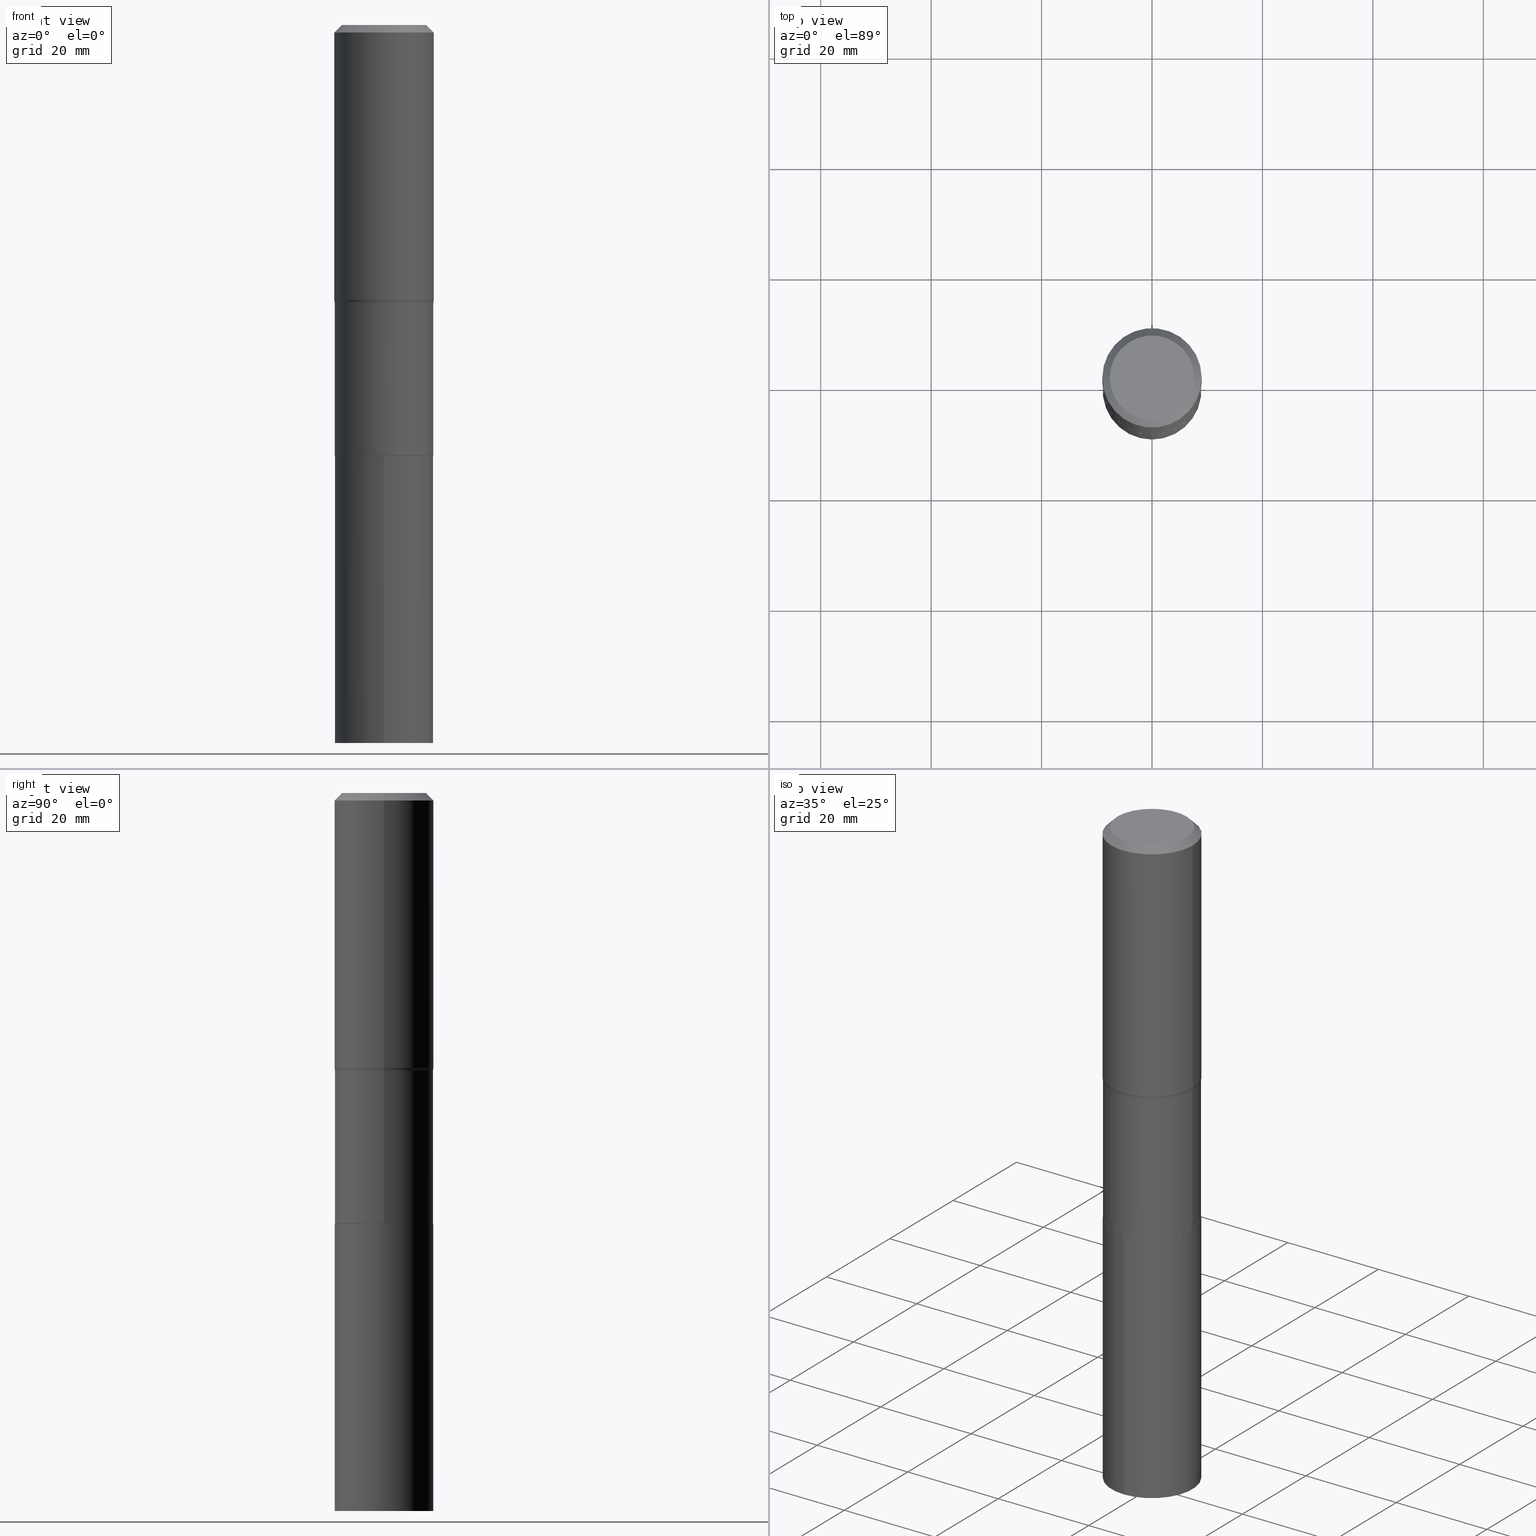
[diagram: canonical four-view strip — front | top / right | iso, engineering-drawing reading convention]
A machine part, canonical four-view strip (front | top / right | iso — engineering-drawing reading convention). The complete STEP part file that produces these views, byte-faithful:
ISO-10303-21;
HEADER;
FILE_DESCRIPTION (( 'STEP AP203' ),
    '1' );
FILE_NAME ('58858.STEP',
    '2024-04-19T14:46:21',
    ( '' ),
    ( '' ),
    'SwSTEP 2.0',
    'SolidWorks 2023',
    '' );
FILE_SCHEMA (( 'CONFIG_CONTROL_DESIGN' ));
ENDSEC;

DATA;
#1 = DIRECTION ( 'NONE',  ( -2.445157327198882185E-29, 3.491927394479744656E-15, 1.000000000000000000 ) ) ;
#2 = TOROIDAL_SURFACE ( 'NONE', #363, 0.4315499999999998226, 0.07999999999999996003 ) ;
#3 = EDGE_CURVE ( 'NONE', #352, #155, #342, .T. ) ;
#4 = DIRECTION ( 'NONE',  ( -6.982962677686265133E-15, -1.000000000000000000, 3.108346458443195584E-15 ) ) ;
#5 = CARTESIAN_POINT ( 'NONE',  ( -1.002970424325033577E-46, 1.431975951230896212E-32, 4.101342130344485961E-18 ) ) ;
#6 = SECURITY_CLASSIFICATION_LEVEL ( 'unclassified' ) ;
#7 = ORIENTED_EDGE ( 'NONE', *, *, #252, .T. ) ;
#8 = AXIS2_PLACEMENT_3D ( 'NONE', #60, #449, #52 ) ;
#9 = CIRCLE ( 'NONE', #297, 0.3543500000000002759 ) ;
#10 =( CONVERSION_BASED_UNIT ( 'INCH', #83 ) LENGTH_UNIT ( ) NAMED_UNIT ( #279 ) );
#11 = FACE_OUTER_BOUND ( 'NONE', #397, .T. ) ;
#12 = CYLINDRICAL_SURFACE ( 'NONE', #334, 0.3515499999999999736 ) ;
#13 =( NAMED_UNIT ( * ) SI_UNIT ( $, .STERADIAN. ) SOLID_ANGLE_UNIT ( ) );
#14 = AXIS2_PLACEMENT_3D ( 'NONE', #138, #29, #143 ) ;
#15 = CARTESIAN_POINT ( 'NONE',  ( 7.510279250675172753E-29, -1.072268833972118442E-14, -3.071099999999999941 ) ) ;
#16 = ORIENTED_EDGE ( 'NONE', *, *, #144, .F. ) ;
#17 = EDGE_CURVE ( 'NONE', #414, #430, #403, .T. ) ;
#18 = DIRECTION ( 'NONE',  ( -1.000000000000000000, 7.105427357601001859E-15, 0.000000000000000000 ) ) ;
#19 = ORIENTED_EDGE ( 'NONE', *, *, #377, .T. ) ;
#20 = CARTESIAN_POINT ( 'NONE',  ( -0.3543500000000002759, -4.327659991680637196E-15, -1.960620009532889618 ) ) ;
#21 =( NAMED_UNIT ( * ) PLANE_ANGLE_UNIT ( ) SI_UNIT ( $, .RADIAN. ) );
#22 = DIRECTION ( 'NONE',  ( -6.982962677686265133E-15, -1.000000000000000000, 3.108346458443195584E-15 ) ) ;
#23 = APPROVAL_ROLE ( '' ) ;
#24 = CARTESIAN_POINT ( 'NONE',  ( 0.000000000000000000, 0.000000000000000000, 0.000000000000000000 ) ) ;
#25 = CC_DESIGN_DATE_AND_TIME_ASSIGNMENT ( #150, #292, ( #341 ) ) ;
#26 = DIRECTION ( 'NONE',  ( 1.000000000000000000, -6.982962677686265922E-15, 4.876176775795935793E-29 ) ) ;
#27 = DATE_TIME_ROLE ( 'creation_date' ) ;
#28 = EDGE_LOOP ( 'NONE', ( #293, #369, #226, #110 ) ) ;
#29 = DIRECTION ( 'NONE',  ( -2.445468806185136597E-29, 3.491481338843145583E-15, 1.000000000000000000 ) ) ;
#30 = EDGE_CURVE ( 'NONE', #430, #414, #9, .T. ) ;
#31 = APPROVAL_STATUS ( 'not_yet_approved' ) ;
#32 = CIRCLE ( 'NONE', #178, 0.3011975000000000069 ) ;
#33 = EDGE_LOOP ( 'NONE', ( #79, #139, #217, #427 ) ) ;
#34 = DIRECTION ( 'NONE',  ( 2.438088387897960049E-29, -3.491481338843145188E-15, -1.000000000000000000 ) ) ;
#35 = VERTEX_POINT ( 'NONE', #412 ) ;
#36 = DIRECTION ( 'NONE',  ( 1.000000000000000000, -6.982962677686266711E-15, 0.000000000000000000 ) ) ;
#37 = CALENDAR_DATE ( 2024, 19, 4 ) ;
#38 = DIRECTION ( 'NONE',  ( 1.000000000000000000, -6.982962677686268288E-15, 0.000000000000000000 ) ) ;
#39 = CARTESIAN_POINT ( 'NONE',  ( 4.845940986336468413E-29, -6.918719421051579045E-15, -1.981600000000000472 ) ) ;
#40 = ADVANCED_FACE ( 'NONE', ( #400 ), #260, .F. ) ;
#41 = DIRECTION ( 'NONE',  ( 1.000000000000000000, -6.982962677686265922E-15, 4.876176775795935793E-29 ) ) ;
#42 = EDGE_CURVE ( 'NONE', #223, #323, #132, .T. ) ;
#43 = PLANE ( 'NONE',  #386 ) ;
#44 = DIRECTION ( 'NONE',  ( -2.445468806185136597E-29, 3.491481338843145583E-15, 1.000000000000000000 ) ) ;
#45 = DIRECTION ( 'NONE',  ( 0.7071067811864026886, -2.468850131080739687E-15, 0.7071067811866923458 ) ) ;
#46 = ORIENTED_EDGE ( 'NONE', *, *, #219, .F. ) ;
#47 = DIRECTION ( 'NONE',  ( -2.445468806185136597E-29, 3.491481338843145583E-15, 1.000000000000000000 ) ) ;
#48 = CALENDAR_DATE ( 2024, 19, 4 ) ;
#49 = ORIENTED_EDGE ( 'NONE', *, *, #3, .F. ) ;
#50 = VECTOR ( 'NONE', #233, 39.37007874015748143 ) ;
#51 = CIRCLE ( 'NONE', #157, 0.3510500000000000287 ) ;
#52 = DIRECTION ( 'NONE',  ( -1.000000000000000000, 6.982962677686266711E-15, 0.000000000000000000 ) ) ;
#53 = ADVANCED_FACE ( 'NONE', ( #75 ), #408, .T. ) ;
#54 = DIRECTION ( 'NONE',  ( -2.445468806185136877E-29, 3.491481338843145188E-15, 1.000000000000000000 ) ) ;
#55 = CARTESIAN_POINT ( 'NONE',  ( 7.510279250675172753E-29, -1.072268833972118442E-14, -3.071099999999999941 ) ) ;
#56 = VECTOR ( 'NONE', #97, 39.37007874015748143 ) ;
#57 = AXIS2_PLACEMENT_3D ( 'NONE', #441, #405, #437 ) ;
#58 = CARTESIAN_POINT ( 'NONE',  ( -0.3515499999999999181, 2.497912987564631622E-15, -1.729251630979111735E-29 ) ) ;
#59 = DIRECTION ( 'NONE',  ( 1.000000000000000000, -6.982962677686266711E-15, 0.000000000000000000 ) ) ;
#60 = CARTESIAN_POINT ( 'NONE',  ( 1.299827807207564898E-30, -1.855809618628617475E-16, -0.05315250000000042163 ) ) ;
#61 = VERTEX_POINT ( 'NONE', #435 ) ;
#62 = LINE ( 'NONE', #93, #425 ) ;
#63 = COORDINATED_UNIVERSAL_TIME_OFFSET ( 5, 0, .BEHIND. ) ;
#64 = LINE ( 'NONE', #442, #201 ) ;
#65 = AXIS2_PLACEMENT_3D ( 'NONE', #299, #447, #237 ) ;
#66 = DIRECTION ( 'NONE',  ( -2.445468806185136597E-29, 3.491481338843145583E-15, 1.000000000000000000 ) ) ;
#67 = EDGE_CURVE ( 'NONE', #61, #96, #287, .T. ) ;
#68 = DIRECTION ( 'NONE',  ( 1.000000000000000000, -6.982962677686265922E-15, 0.000000000000000000 ) ) ;
#69 = ADVANCED_FACE ( 'NONE', ( #365 ), #2, .F. ) ;
#70 = VECTOR ( 'NONE', #203, 39.37007874015748143 ) ;
#71 = ORIENTED_EDGE ( 'NONE', *, *, #420, .F. ) ;
#72 = CC_DESIGN_SECURITY_CLASSIFICATION ( #341, ( #321 ) ) ;
#73 = CARTESIAN_POINT ( 'NONE',  ( 7.509056516272079952E-29, -1.072094259905176212E-14, -3.070599999999999774 ) ) ;
#74 = ORIENTED_EDGE ( 'NONE', *, *, #136, .T. ) ;
#75 = FACE_OUTER_BOUND ( 'NONE', #464, .T. ) ;
#76 = DIRECTION ( 'NONE',  ( -2.445157327198882185E-29, 3.491927394479744656E-15, 1.000000000000000000 ) ) ;
#77 = CLOSED_SHELL ( 'NONE', ( #247, #214, #152, #69, #251, #53, #439, #336, #119, #286, #205, #428 ) ) ;
#78 = EDGE_CURVE ( 'NONE', #352, #298, #154, .T. ) ;
#79 = ORIENTED_EDGE ( 'NONE', *, *, #179, .F. ) ;
#80 = EDGE_CURVE ( 'NONE', #96, #61, #95, .T. ) ;
#81 = EDGE_LOOP ( 'NONE', ( #234, #177, #175, #253 ) ) ;
#82 = AXIS2_PLACEMENT_3D ( 'NONE', #73, #47, #291 ) ;
#83 = LENGTH_MEASURE_WITH_UNIT ( LENGTH_MEASURE( 0.02539999999999999897 ), #204 );
#84 = ADVANCED_FACE ( 'NONE', ( #195 ), #12, .T. ) ;
#85 = CYLINDRICAL_SURFACE ( 'NONE', #210, 0.3515499999999999736 ) ;
#86 = DIRECTION ( 'NONE',  ( -2.445157327198882185E-29, 3.491927394479744656E-15, 1.000000000000000000 ) ) ;
#87 = DIRECTION ( 'NONE',  ( -0.7071067811865452413, 2.468850131082233000E-15, -0.7071067811865497932 ) ) ;
#88 = EDGE_CURVE ( 'NONE', #35, #103, #456, .T. ) ;
#89 = VECTOR ( 'NONE', #137, 39.37007874015748143 ) ;
#90 = PLANE ( 'NONE',  #415 ) ;
#91 = CC_DESIGN_PERSON_AND_ORGANIZATION_ASSIGNMENT ( #222, #109, ( #321 ) ) ;
#92 = CARTESIAN_POINT ( 'NONE',  ( 7.510279250675172753E-29, -1.072268833972118442E-14, -3.071099999999999941 ) ) ;
#93 = CARTESIAN_POINT ( 'NONE',  ( 0.3543500000000000538, -2.616598427373204657E-15, -0.05315250000000042163 ) ) ;
#94 = CYLINDRICAL_SURFACE ( 'NONE', #340, 0.3515499999999999181 ) ;
#95 = CIRCLE ( 'NONE', #65, 0.3515499999999998071 ) ;
#96 = VERTEX_POINT ( 'NONE', #413 ) ;
#97 = DIRECTION ( 'NONE',  ( -2.445468806185136877E-29, 3.491481338843145188E-15, 1.000000000000000000 ) ) ;
#98 = CARTESIAN_POINT ( 'NONE',  ( 7.510279250675172753E-29, -1.072268833972118442E-14, -3.071099999999999941 ) ) ;
#99 = ORIENTED_EDGE ( 'NONE', *, *, #368, .F. ) ;
#100 = LINE ( 'NONE', #458, #89 ) ;
#101 = DIRECTION ( 'NONE',  ( 1.000000000000000000, -6.982962677686266711E-15, 0.000000000000000000 ) ) ;
#102 = VERTEX_POINT ( 'NONE', #261 ) ;
#103 = VERTEX_POINT ( 'NONE', #121 ) ;
#104 = DIRECTION ( 'NONE',  ( 1.000000000000000000, -6.982962677686265922E-15, 4.876176775795935793E-29 ) ) ;
#105 = AXIS2_PLACEMENT_3D ( 'NONE', #382, #280, #135 ) ;
#106 = AXIS2_PLACEMENT_3D ( 'NONE', #193, #326, #186 ) ;
#107 = DIRECTION ( 'NONE',  ( -2.445468806185136597E-29, 3.491481338843145583E-15, 1.000000000000000000 ) ) ;
#108 = COORDINATED_UNIVERSAL_TIME_OFFSET ( 5, 0, .BEHIND. ) ;
#109 = PERSON_AND_ORGANIZATION_ROLE ( 'creator' ) ;
#110 = ORIENTED_EDGE ( 'NONE', *, *, #263, .F. ) ;
#111 = APPROVAL_ROLE ( '' ) ;
#112 = EDGE_LOOP ( 'NONE', ( #173, #140, #285, #146 ) ) ;
#113 = VECTOR ( 'NONE', #54, 39.37007874015748143 ) ;
#114 = PRODUCT_DEFINITION_SHAPE ( 'NONE', 'NONE',  #147 ) ;
#115 = LOCAL_TIME ( 10, 46, 21.00000000000000000, #176 ) ;
#116 = FACE_OUTER_BOUND ( 'NONE', #33, .T. ) ;
#117 = CARTESIAN_POINT ( 'NONE',  ( 7.510279250675172753E-29, -1.072268833972118442E-14, -3.071099999999999941 ) ) ;
#118 = APPROVAL ( #31, 'UNSPECIFIED' ) ;
#119 = ADVANCED_FACE ( 'NONE', ( #337 ), #328, .T. ) ;
#120 = ADVANCED_FACE ( 'NONE', ( #11 ), #85, .T. ) ;
#121 = CARTESIAN_POINT ( 'NONE',  ( 2.497912987564757839E-15, 0.3515499999999892600, -3.071100000000000829 ) ) ;
#122 = AXIS2_PLACEMENT_3D ( 'NONE', #269, #238, #68 ) ;
#123 = DIRECTION ( 'NONE',  ( -2.445157327198882185E-29, 3.491927394479744656E-15, 1.000000000000000000 ) ) ;
#124 = PERSON_AND_ORGANIZATION ( #145, #302 ) ;
#125 = DIRECTION ( 'NONE',  ( -6.982962677686265133E-15, -1.000000000000000000, 3.108346458443195584E-15 ) ) ;
#126 = ORIENTED_EDGE ( 'NONE', *, *, #467, .F. ) ;
#127 = CARTESIAN_POINT ( 'NONE',  ( 0.3510500000000000287, -1.317405738772294887E-14, -3.071099999999999941 ) ) ;
#128 = ADVANCED_FACE ( 'NONE', ( #232 ), #90, .F. ) ;
#129 = FACE_OUTER_BOUND ( 'NONE', #434, .T. ) ;
#130 = AXIS2_PLACEMENT_3D ( 'NONE', #344, #229, #18 ) ;
#131 = CC_DESIGN_APPROVAL ( #459, ( #341 ) ) ;
#132 = CIRCLE ( 'NONE', #158, 0.3515499999999999736 ) ;
#133 = CARTESIAN_POINT ( 'NONE',  ( 2.497912987564706563E-15, 0.3515499999999892600, -3.071100000000000829 ) ) ;
#134 = FACE_OUTER_BOUND ( 'NONE', #112, .T. ) ;
#135 = DIRECTION ( 'NONE',  ( 1.000000000000000000, -6.982962677686262766E-15, 0.000000000000000000 ) ) ;
#136 = EDGE_CURVE ( 'NONE', #429, #96, #309, .T. ) ;
#137 = DIRECTION ( 'NONE',  ( -0.7071067811864026886, 7.493145998869830357E-15, 0.7071067811866923458 ) ) ;
#138 = CARTESIAN_POINT ( 'NONE',  ( 1.299827807207564898E-30, -1.855809618628617475E-16, -0.05315250000000042163 ) ) ;
#139 = ORIENTED_EDGE ( 'NONE', *, *, #420, .T. ) ;
#140 = ORIENTED_EDGE ( 'NONE', *, *, #198, .T. ) ;
#141 = AXIS2_PLACEMENT_3D ( 'NONE', #278, #315, #353 ) ;
#142 = ORIENTED_EDGE ( 'NONE', *, *, #467, .T. ) ;
#143 = DIRECTION ( 'NONE',  ( 1.000000000000000000, -6.982962677686266711E-15, 0.000000000000000000 ) ) ;
#144 = EDGE_CURVE ( 'NONE', #102, #61, #411, .T. ) ;
#145 = PERSON ( 'UNSPECIFIED', 'UNSPECIFIED', 'UNSPECIFIED', ('UNSPECIFIED'), ('UNSPECIFIED'), ('UNSPECIFIED') ) ;
#146 = ORIENTED_EDGE ( 'NONE', *, *, #377, .F. ) ;
#147 = PRODUCT_DEFINITION ( 'UNKNOWN', '', #321, #240 ) ;
#148 = CARTESIAN_POINT ( 'NONE',  ( 2.497912987564731807E-15, 0.3515499999999820990, -5.118100000000002758 ) ) ;
#149 = CC_DESIGN_APPROVAL ( #259, ( #321 ) ) ;
#150 = DATE_AND_TIME ( #48, #371 ) ;
#151 = DIRECTION ( 'NONE',  ( -2.445468806185136597E-29, 3.491481338843145583E-15, 1.000000000000000000 ) ) ;
#152 = ADVANCED_FACE ( 'NONE', ( #375 ), #206, .T. ) ;
#153 = ORIENTED_EDGE ( 'NONE', *, *, #208, .T. ) ;
#154 = LINE ( 'NONE', #267, #187 ) ;
#155 = VERTEX_POINT ( 'NONE', #339 ) ;
#156 = ORIENTED_EDGE ( 'NONE', *, *, #172, .T. ) ;
#157 = AXIS2_PLACEMENT_3D ( 'NONE', #468, #236, #59 ) ;
#158 = AXIS2_PLACEMENT_3D ( 'NONE', #398, #76, #4 ) ;
#159 = EDGE_CURVE ( 'NONE', #103, #35, #256, .T. ) ;
#160 = CARTESIAN_POINT ( 'NONE',  ( 0.000000000000000000, 0.000000000000000000, 0.000000000000000000 ) ) ;
#161 = CIRCLE ( 'NONE', #130, 0.07999999999999996003 ) ;
#162 = CIRCLE ( 'NONE', #122, 0.3515499999999999736 ) ;
#163 = DIRECTION ( 'NONE',  ( -6.982962677686265133E-15, -1.000000000000000000, 3.108346458443195584E-15 ) ) ;
#164 = ORIENTED_EDGE ( 'NONE', *, *, #368, .T. ) ;
#165 = APPLICATION_PROTOCOL_DEFINITION ( 'international standard', 'config_control_design', 1994, #197 ) ;
#166 = CARTESIAN_POINT ( 'NONE',  ( -1.002970424325033577E-46, 1.431975951230896212E-32, 4.101342130344485961E-18 ) ) ;
#167 = CARTESIAN_POINT ( 'NONE',  ( 7.510279250675172753E-29, -1.072268833972118442E-14, -3.071099999999999941 ) ) ;
#168 = CALENDAR_DATE ( 2024, 19, 4 ) ;
#169 = AXIS2_PLACEMENT_3D ( 'NONE', #347, #34, #241 ) ;
#170 = EDGE_CURVE ( 'NONE', #223, #103, #450, .T. ) ;
#171 = DATE_AND_TIME ( #209, #445 ) ;
#172 = EDGE_CURVE ( 'NONE', #414, #61, #161, .T. ) ;
#173 = ORIENTED_EDGE ( 'NONE', *, *, #384, .F. ) ;
#174 = DIRECTION ( 'NONE',  ( -2.445468806185136597E-29, 3.491481338843145583E-15, 1.000000000000000000 ) ) ;
#175 = ORIENTED_EDGE ( 'NONE', *, *, #225, .F. ) ;
#176 = COORDINATED_UNIVERSAL_TIME_OFFSET ( 5, 0, .BEHIND. ) ;
#177 = ORIENTED_EDGE ( 'NONE', *, *, #258, .T. ) ;
#178 = AXIS2_PLACEMENT_3D ( 'NONE', #166, #273, #451 ) ;
#179 = EDGE_CURVE ( 'NONE', #155, #352, #32, .T. ) ;
#180 = AXIS2_PLACEMENT_3D ( 'NONE', #5, #151, #357 ) ;
#181 = ORIENTED_EDGE ( 'NONE', *, *, #219, .T. ) ;
#182 = DIRECTION ( 'NONE',  ( 6.982962677686265922E-15, 1.000000000000000000, -3.491927394479744656E-15 ) ) ;
#183 = ORIENTED_EDGE ( 'NONE', *, *, #384, .T. ) ;
#184 = CARTESIAN_POINT ( 'NONE',  ( -2.454860529340531335E-15, -0.3515500000000106873, -3.071099999999998609 ) ) ;
#185 = PERSON_AND_ORGANIZATION ( #145, #302 ) ;
#186 = DIRECTION ( 'NONE',  ( -1.000000000000000000, 6.982962677686266711E-15, 0.000000000000000000 ) ) ;
#187 = VECTOR ( 'NONE', #87, 39.37007874015748143 ) ;
#188 = PERSON_AND_ORGANIZATION_ROLE ( 'classification_officer' ) ;
#189 = ORIENTED_EDGE ( 'NONE', *, *, #144, .T. ) ;
#190 = ORIENTED_EDGE ( 'NONE', *, *, #78, .T. ) ;
#191 = CARTESIAN_POINT ( 'NONE',  ( 4.845940986336468413E-29, -6.918719421051579045E-15, -1.981600000000000472 ) ) ;
#192 = VERTEX_POINT ( 'NONE', #127 ) ;
#193 = CARTESIAN_POINT ( 'NONE',  ( 1.299827807207564898E-30, -1.855809618628617475E-16, -0.05315250000000042163 ) ) ;
#194 = AXIS2_PLACEMENT_3D ( 'NONE', #15, #346, #163 ) ;
#195 = FACE_OUTER_BOUND ( 'NONE', #362, .T. ) ;
#196 = CC_DESIGN_PERSON_AND_ORGANIZATION_ASSIGNMENT ( #360, #188, ( #341 ) ) ;
#197 = APPLICATION_CONTEXT ( 'configuration controlled 3d designs of mechanical parts and assemblies' ) ;
#198 = EDGE_CURVE ( 'NONE', #381, #192, #221, .T. ) ;
#199 = DIRECTION ( 'NONE',  ( -2.445468806185136597E-29, 3.491481338843145583E-15, 1.000000000000000000 ) ) ;
#200 = ORIENTED_EDGE ( 'NONE', *, *, #17, .F. ) ;
#201 = VECTOR ( 'NONE', #45, 39.37007874015748143 ) ;
#202 =( GEOMETRIC_REPRESENTATION_CONTEXT ( 3 ) GLOBAL_UNCERTAINTY_ASSIGNED_CONTEXT ( ( #268 ) ) GLOBAL_UNIT_ASSIGNED_CONTEXT ( ( #10, #21, #13 ) ) REPRESENTATION_CONTEXT ( 'NONE', 'WORKASPACE' ) );
#203 = DIRECTION ( 'NONE',  ( -2.445157327198882185E-29, 3.491927394479744656E-15, 1.000000000000000000 ) ) ;
#204 =( LENGTH_UNIT ( ) NAMED_UNIT ( * ) SI_UNIT ( $, .METRE. ) );
#205 = ADVANCED_FACE ( 'NONE', ( #333 ), #43, .F. ) ;
#206 = CYLINDRICAL_SURFACE ( 'NONE', #313, 0.3543500000000001648 ) ;
#207 = CYLINDRICAL_SURFACE ( 'NONE', #463, 0.3543500000000001648 ) ;
#208 = EDGE_CURVE ( 'NONE', #429, #102, #431, .T. ) ;
#209 = CALENDAR_DATE ( 2024, 19, 4 ) ;
#210 = AXIS2_PLACEMENT_3D ( 'NONE', #55, #123, #304 ) ;
#211 = CARTESIAN_POINT ( 'NONE',  ( 0.000000000000000000, 0.000000000000000000, 0.000000000000000000 ) ) ;
#212 = DIRECTION ( 'NONE',  ( 1.000000000000000000, -6.982962677686265922E-15, 4.876176775795935793E-29 ) ) ;
#213 = DIRECTION ( 'NONE',  ( -2.445468806185136597E-29, 3.491481338843145583E-15, 1.000000000000000000 ) ) ;
#214 = ADVANCED_FACE ( 'NONE', ( #116 ), #444, .T. ) ;
#215 = ORIENTED_EDGE ( 'NONE', *, *, #198, .F. ) ;
#216 = PERSON_AND_ORGANIZATION ( #145, #302 ) ;
#217 = ORIENTED_EDGE ( 'NONE', *, *, #225, .T. ) ;
#218 = DIRECTION ( 'NONE',  ( -2.445468806185136597E-29, 3.491481338843145583E-15, 1.000000000000000000 ) ) ;
#219 = EDGE_CURVE ( 'NONE', #323, #35, #359, .T. ) ;
#220 = EDGE_LOOP ( 'NONE', ( #71, #49, #190, #417 ) ) ;
#221 = CIRCLE ( 'NONE', #230, 0.3510500000000000287 ) ;
#222 = PERSON_AND_ORGANIZATION ( #145, #302 ) ;
#223 = VERTEX_POINT ( 'NONE', #148 ) ;
#224 = ORIENTED_EDGE ( 'NONE', *, *, #179, .T. ) ;
#225 = EDGE_CURVE ( 'NONE', #311, #298, #262, .T. ) ;
#226 = ORIENTED_EDGE ( 'NONE', *, *, #364, .T. ) ;
#227 = MANIFOLD_SOLID_BREP ( 'Body-Move/Copy2[2]', #77 ) ;
#228 = ORIENTED_EDGE ( 'NONE', *, *, #3, .T. ) ;
#229 = DIRECTION ( 'NONE',  ( 7.105427357601001859E-15, 1.000000000000000000, -3.491481338843145583E-15 ) ) ;
#230 = AXIS2_PLACEMENT_3D ( 'NONE', #98, #322, #36 ) ;
#231 = MANIFOLD_SOLID_BREP ( 'Body-Move/Copy2[1]', #433 ) ;
#232 = FACE_OUTER_BOUND ( 'NONE', #446, .T. ) ;
#233 = DIRECTION ( 'NONE',  ( -2.445468806185136877E-29, 3.491481338843145188E-15, 1.000000000000000000 ) ) ;
#234 = ORIENTED_EDGE ( 'NONE', *, *, #30, .T. ) ;
#235 = CIRCLE ( 'NONE', #320, 0.3515499999999999736 ) ;
#236 = DIRECTION ( 'NONE',  ( -2.445468806185136597E-29, 3.491481338843145583E-15, 1.000000000000000000 ) ) ;
#237 = DIRECTION ( 'NONE',  ( 1.000000000000000000, -6.982962677686265133E-15, 0.000000000000000000 ) ) ;
#238 = DIRECTION ( 'NONE',  ( -2.445468806185136597E-29, 3.491481338843145583E-15, 1.000000000000000000 ) ) ;
#239 = FACE_OUTER_BOUND ( 'NONE', #28, .T. ) ;
#240 = DESIGN_CONTEXT ( 'detailed design', #197, 'design' ) ;
#241 = DIRECTION ( 'NONE',  ( -1.000000000000000000, 6.982962677686265922E-15, -4.876176775795935793E-29 ) ) ;
#242 = ORIENTED_EDGE ( 'NONE', *, *, #67, .T. ) ;
#243 = CIRCLE ( 'NONE', #370, 0.3543500000000000538 ) ;
#244 = DIRECTION ( 'NONE',  ( -2.445468806185136597E-29, 3.491481338843145583E-15, 1.000000000000000000 ) ) ;
#245 = DIRECTION ( 'NONE',  ( 1.000000000000000000, -6.982962677686267499E-15, 4.883557194083113462E-29 ) ) ;
#246 = ORIENTED_EDGE ( 'NONE', *, *, #30, .F. ) ;
#247 = ADVANCED_FACE ( 'NONE', ( #308 ), #348, .T. ) ;
#248 = ORIENTED_EDGE ( 'NONE', *, *, #252, .F. ) ;
#249 = AXIS2_PLACEMENT_3D ( 'NONE', #167, #86, #125 ) ;
#250 = ORIENTED_EDGE ( 'NONE', *, *, #136, .F. ) ;
#251 = ADVANCED_FACE ( 'NONE', ( #129 ), #94, .T. ) ;
#252 = EDGE_CURVE ( 'NONE', #430, #96, #296, .T. ) ;
#253 = ORIENTED_EDGE ( 'NONE', *, *, #364, .F. ) ;
#254 = COORDINATED_UNIVERSAL_TIME_OFFSET ( 5, 0, .BEHIND. ) ;
#255 = DIRECTION ( 'NONE',  ( -2.445468806185136597E-29, 3.491481338843145583E-15, 1.000000000000000000 ) ) ;
#256 = CIRCLE ( 'NONE', #194, 0.3515499999999999736 ) ;
#257 = DIRECTION ( 'NONE',  ( -2.445468806185136597E-29, 3.491481338843145583E-15, 1.000000000000000000 ) ) ;
#258 = EDGE_CURVE ( 'NONE', #414, #298, #283, .T. ) ;
#259 = APPROVAL ( #385, 'UNSPECIFIED' ) ;
#260 = PLANE ( 'NONE',  #356 ) ;
#261 = CARTESIAN_POINT ( 'NONE',  ( -0.3515499999999999736, -6.321918022487037385E-15, -3.070599999999999774 ) ) ;
#262 = CIRCLE ( 'NONE', #14, 0.3543500000000000538 ) ;
#263 = EDGE_CURVE ( 'NONE', #298, #311, #243, .T. ) ;
#264 = LINE ( 'NONE', #319, #56 ) ;
#265 = DIRECTION ( 'NONE',  ( -2.445157327198881905E-29, 3.491927394479744656E-15, 1.000000000000000000 ) ) ;
#266 = PERSON_AND_ORGANIZATION_ROLE ( 'design_owner' ) ;
#267 = CARTESIAN_POINT ( 'NONE',  ( -0.3543500000000000538, 2.288831862975267218E-15, -0.05315250000000042163 ) ) ;
#268 = UNCERTAINTY_MEASURE_WITH_UNIT (LENGTH_MEASURE( 1.000000000000000082E-05 ), #10, 'distance_accuracy_value', 'NONE');
#269 = CARTESIAN_POINT ( 'NONE',  ( 7.509056516272079952E-29, -1.072094259905176212E-14, -3.070599999999999774 ) ) ;
#270 = AXIS2_PLACEMENT_3D ( 'NONE', #327, #218, #41 ) ;
#271 = APPROVAL_PERSON_ORGANIZATION ( #185, #459, #111 ) ;
#272 = CARTESIAN_POINT ( 'NONE',  ( 0.3543500000000000538, -2.659993786700990959E-15, -0.05315250000000042163 ) ) ;
#273 = DIRECTION ( 'NONE',  ( -2.445468806185136597E-29, 3.491481338843145583E-15, 1.000000000000000000 ) ) ;
#274 = DIRECTION ( 'NONE',  ( -2.445468806185136877E-29, 3.491481338843145188E-15, 1.000000000000000000 ) ) ;
#275 = CC_DESIGN_PERSON_AND_ORGANIZATION_ASSIGNMENT ( #216, #324, ( #321 ) ) ;
#276 = PERSON_AND_ORGANIZATION ( #145, #302 ) ;
#277 = DIRECTION ( 'NONE',  ( 1.000000000000000000, -6.982962677686266711E-15, 0.000000000000000000 ) ) ;
#278 = CARTESIAN_POINT ( 'NONE',  ( 7.510279250675172753E-29, -1.072268833972118442E-14, -3.071099999999999941 ) ) ;
#279 = DIMENSIONAL_EXPONENTS ( 1.000000000000000000, 0.000000000000000000, 0.000000000000000000, 0.000000000000000000, 0.000000000000000000, 0.000000000000000000, 0.000000000000000000 ) ;
#280 = DIRECTION ( 'NONE',  ( -6.982962677686266711E-15, -1.000000000000000000, 3.491481338843145583E-15 ) ) ;
#281 = AXIS2_PLACEMENT_3D ( 'NONE', #39, #107, #245 ) ;
#282 = ORIENTED_EDGE ( 'NONE', *, *, #80, .F. ) ;
#283 = LINE ( 'NONE', #390, #402 ) ;
#284 = SHAPE_DEFINITION_REPRESENTATION ( #114, #310 ) ;
#285 = ORIENTED_EDGE ( 'NONE', *, *, #343, .T. ) ;
#286 = ADVANCED_FACE ( 'NONE', ( #392 ), #454, .F. ) ;
#287 = CIRCLE ( 'NONE', #301, 0.3515499999999998071 ) ;
#288 = LOCAL_TIME ( 10, 46, 21.00000000000000000, #108 ) ;
#289 = APPROVAL_DATE_TIME ( #404, #459 ) ;
#290 = PRODUCT_RELATED_PRODUCT_CATEGORY ( 'detail', '', ( #331 ) ) ;
#291 = DIRECTION ( 'NONE',  ( 1.000000000000000000, -6.982962677686265922E-15, 0.000000000000000000 ) ) ;
#292 = DATE_TIME_ROLE ( 'classification_date' ) ;
#293 = ORIENTED_EDGE ( 'NONE', *, *, #258, .F. ) ;
#294 = CARTESIAN_POINT ( 'NONE',  ( 4.845940986336468413E-29, -6.918719421051579045E-15, -1.981600000000000472 ) ) ;
#295 = ORIENTED_EDGE ( 'NONE', *, *, #67, .F. ) ;
#296 = CIRCLE ( 'NONE', #105, 0.07999999999999996003 ) ;
#297 = AXIS2_PLACEMENT_3D ( 'NONE', #366, #255, #38 ) ;
#298 = VERTEX_POINT ( 'NONE', #388 ) ;
#299 = CARTESIAN_POINT ( 'NONE',  ( 4.845940986336468413E-29, -6.918719421051579045E-15, -1.981600000000000472 ) ) ;
#300 = CARTESIAN_POINT ( 'NONE',  ( 1.407078673707705465E-29, -3.377857864929122836E-14, -5.118100000000000982 ) ) ;
#301 = AXIS2_PLACEMENT_3D ( 'NONE', #191, #44, #438 ) ;
#302 = ORGANIZATION ( 'UNSPECIFIED', 'UNSPECIFIED', '' ) ;
#303 = APPLICATION_PROTOCOL_DEFINITION ( 'international standard', 'config_control_design', 1994, #338 ) ;
#304 = DIRECTION ( 'NONE',  ( -6.982962677686265133E-15, -1.000000000000000000, 3.108346458443195584E-15 ) ) ;
#305 = DIRECTION ( 'NONE',  ( -2.445157327198882185E-29, 3.491927394479744656E-15, 1.000000000000000000 ) ) ;
#306 = APPROVAL_DATE_TIME ( #462, #118 ) ;
#307 = EDGE_LOOP ( 'NONE', ( #228, #224 ) ) ;
#308 = FACE_OUTER_BOUND ( 'NONE', #395, .T. ) ;
#309 = LINE ( 'NONE', #372, #50 ) ;
#310 = ADVANCED_BREP_SHAPE_REPRESENTATION ( '58858', ( #231, #227, #416 ), #202 ) ;
#311 = VERTEX_POINT ( 'NONE', #272 ) ;
#312 = CARTESIAN_POINT ( 'NONE',  ( 1.251551629945128964E-28, -1.787066371622122777E-14, -5.118100000000000982 ) ) ;
#313 = AXIS2_PLACEMENT_3D ( 'NONE', #378, #199, #455 ) ;
#314 = APPROVAL_PERSON_ORGANIZATION ( #276, #259, #423 ) ;
#315 = DIRECTION ( 'NONE',  ( -2.445468806185136597E-29, 3.491481338843145583E-15, 1.000000000000000000 ) ) ;
#316 = PERSON_AND_ORGANIZATION ( #145, #302 ) ;
#317 = EDGE_LOOP ( 'NONE', ( #126, #215 ) ) ;
#318 = CARTESIAN_POINT ( 'NONE',  ( 0.3543500000000002759, -9.319881000684684831E-15, -1.960620009532889618 ) ) ;
#319 = CARTESIAN_POINT ( 'NONE',  ( 0.3543500000000001648, -2.474412824838129483E-15, 1.727873240503290590E-29 ) ) ;
#320 = AXIS2_PLACEMENT_3D ( 'NONE', #312, #452, #460 ) ;
#321 = PRODUCT_DEFINITION_FORMATION_WITH_SPECIFIED_SOURCE ( 'ANY', '', #331, .NOT_KNOWN. ) ;
#322 = DIRECTION ( 'NONE',  ( -2.445468806185136597E-29, 3.491481338843145583E-15, 1.000000000000000000 ) ) ;
#323 = VERTEX_POINT ( 'NONE', #419 ) ;
#324 = PERSON_AND_ORGANIZATION_ROLE ( 'design_supplier' ) ;
#325 = ORIENTED_EDGE ( 'NONE', *, *, #208, .F. ) ;
#326 = DIRECTION ( 'NONE',  ( 2.445468806185136597E-29, -3.491481338843145583E-15, -1.000000000000000000 ) ) ;
#327 = CARTESIAN_POINT ( 'NONE',  ( 0.000000000000000000, 0.000000000000000000, 0.000000000000000000 ) ) ;
#328 = CONICAL_SURFACE ( 'NONE', #8, 0.3543500000000000538, 0.7853981633974450594 ) ;
#329 = ORIENTED_EDGE ( 'NONE', *, *, #42, .F. ) ;
#330 = ORIENTED_EDGE ( 'NONE', *, *, #42, .T. ) ;
#331 = PRODUCT ( '58858', '58858', '', ( #418 ) ) ;
#332 = ORIENTED_EDGE ( 'NONE', *, *, #159, .F. ) ;
#333 = FACE_OUTER_BOUND ( 'NONE', #317, .T. ) ;
#334 = AXIS2_PLACEMENT_3D ( 'NONE', #410, #305, #22 ) ;
#335 = CC_DESIGN_PERSON_AND_ORGANIZATION_ASSIGNMENT ( #421, #383, ( #147 ) ) ;
#336 = ADVANCED_FACE ( 'NONE', ( #239 ), #207, .T. ) ;
#337 = FACE_OUTER_BOUND ( 'NONE', #220, .T. ) ;
#338 = APPLICATION_CONTEXT ( 'configuration controlled 3d designs of mechanical parts and assemblies' ) ;
#339 = CARTESIAN_POINT ( 'NONE',  ( 0.3011975000000000069, -2.341481636528498111E-15, 4.101342130360026675E-18 ) ) ;
#340 = AXIS2_PLACEMENT_3D ( 'NONE', #211, #66, #212 ) ;
#341 = SECURITY_CLASSIFICATION ( '', '', #6 ) ;
#342 = CIRCLE ( 'NONE', #180, 0.3011975000000000069 ) ;
#343 = EDGE_CURVE ( 'NONE', #192, #429, #64, .T. ) ;
#344 = CARTESIAN_POINT ( 'NONE',  ( -0.4315499999999998226, -3.852372244878868348E-15, -1.981600000000000472 ) ) ;
#345 = CC_DESIGN_PERSON_AND_ORGANIZATION_ASSIGNMENT ( #124, #266, ( #331 ) ) ;
#346 = DIRECTION ( 'NONE',  ( -2.445157327198882185E-29, 3.491927394479744656E-15, 1.000000000000000000 ) ) ;
#347 = CARTESIAN_POINT ( 'NONE',  ( -5.014852121625167883E-47, 7.159879756154481060E-33, 2.050671065172242981E-18 ) ) ;
#348 = CONICAL_SURFACE ( 'NONE', #141, 0.3510500000000000287, 0.7853981633972434429 ) ;
#349 = CALENDAR_DATE ( 2024, 19, 4 ) ;
#350 = EDGE_LOOP ( 'NONE', ( #426, #246, #7, #461 ) ) ;
#351 = CARTESIAN_POINT ( 'NONE',  ( 0.3515499999999999736, -1.317580312839236801E-14, -3.070599999999999774 ) ) ;
#352 = VERTEX_POINT ( 'NONE', #407 ) ;
#353 = DIRECTION ( 'NONE',  ( 1.000000000000000000, -6.982962677686266711E-15, 0.000000000000000000 ) ) ;
#354 = AXIS2_PLACEMENT_3D ( 'NONE', #92, #213, #277 ) ;
#355 = ORIENTED_EDGE ( 'NONE', *, *, #343, .F. ) ;
#356 = AXIS2_PLACEMENT_3D ( 'NONE', #358, #393, #182 ) ;
#357 = DIRECTION ( 'NONE',  ( 1.000000000000000000, -6.982962677686266711E-15, 4.876239486148337140E-29 ) ) ;
#358 = CARTESIAN_POINT ( 'NONE',  ( 7.510279250675172753E-29, -1.072268833972118442E-14, -3.071099999999999941 ) ) ;
#359 = LINE ( 'NONE', #184, #394 ) ;
#360 = PERSON_AND_ORGANIZATION ( #145, #302 ) ;
#361 = APPROVAL_DATE_TIME ( #396, #259 ) ;
#362 = EDGE_LOOP ( 'NONE', ( #367, #330, #181, #332 ) ) ;
#363 = AXIS2_PLACEMENT_3D ( 'NONE', #294, #257, #406 ) ;
#364 = EDGE_CURVE ( 'NONE', #430, #311, #264, .T. ) ;
#365 = FACE_OUTER_BOUND ( 'NONE', #391, .T. ) ;
#366 = CARTESIAN_POINT ( 'NONE',  ( 4.794635074095086779E-29, -6.845468175846554165E-15, -1.960620009532889618 ) ) ;
#367 = ORIENTED_EDGE ( 'NONE', *, *, #170, .F. ) ;
#368 = EDGE_CURVE ( 'NONE', #323, #223, #235, .T. ) ;
#369 = ORIENTED_EDGE ( 'NONE', *, *, #17, .T. ) ;
#370 = AXIS2_PLACEMENT_3D ( 'NONE', #422, #244, #101 ) ;
#371 = LOCAL_TIME ( 10, 46, 21.00000000000000000, #254 ) ;
#372 = CARTESIAN_POINT ( 'NONE',  ( 0.3515499999999999181, -2.454860529340606276E-15, 1.714219945531060835E-29 ) ) ;
#373 = DIRECTION ( 'NONE',  ( -6.982962677686265922E-15, -1.000000000000000000, 3.491927394479744656E-15 ) ) ;
#374 = DIRECTION ( 'NONE',  ( 1.000000000000000000, 0.000000000000000000, 0.000000000000000000 ) ) ;
#375 = FACE_OUTER_BOUND ( 'NONE', #81, .T. ) ;
#376 = EDGE_LOOP ( 'NONE', ( #401, #443 ) ) ;
#377 = EDGE_CURVE ( 'NONE', #102, #429, #162, .T. ) ;
#378 = CARTESIAN_POINT ( 'NONE',  ( 0.000000000000000000, 0.000000000000000000, 0.000000000000000000 ) ) ;
#379 = CONICAL_SURFACE ( 'NONE', #354, 0.3510500000000000287, 0.7853981633972434429 ) ;
#380 = CC_DESIGN_DATE_AND_TIME_ASSIGNMENT ( #171, #27, ( #147 ) ) ;
#381 = VERTEX_POINT ( 'NONE', #424 ) ;
#382 = CARTESIAN_POINT ( 'NONE',  ( 0.4315499999999998226, -9.932216964607086579E-15, -1.981600000000000472 ) ) ;
#383 = PERSON_AND_ORGANIZATION_ROLE ( 'creator' ) ;
#384 = EDGE_CURVE ( 'NONE', #381, #102, #100, .T. ) ;
#385 = APPROVAL_STATUS ( 'not_yet_approved' ) ;
#386 = AXIS2_PLACEMENT_3D ( 'NONE', #117, #436, #104 ) ;
#387 = ORIENTED_EDGE ( 'NONE', *, *, #88, .F. ) ;
#388 = CARTESIAN_POINT ( 'NONE',  ( -0.3543500000000000538, -9.977163846887918380E-16, -0.05315250000000042163 ) ) ;
#389 = COORDINATED_UNIVERSAL_TIME_OFFSET ( 5, 0, .BEHIND. ) ;
#390 = CARTESIAN_POINT ( 'NONE',  ( -0.3543500000000001648, 2.517808184165916180E-15, -1.743024649231826627E-29 ) ) ;
#391 = EDGE_LOOP ( 'NONE', ( #200, #156, #242, #248 ) ) ;
#392 = FACE_OUTER_BOUND ( 'NONE', #307, .T. ) ;
#393 = DIRECTION ( 'NONE',  ( 2.445157327198881905E-29, -3.491927394479744656E-15, -1.000000000000000000 ) ) ;
#394 = VECTOR ( 'NONE', #1, 39.37007874015748143 ) ;
#395 = EDGE_LOOP ( 'NONE', ( #142, #183, #325, #355 ) ) ;
#396 = DATE_AND_TIME ( #349, #409 ) ;
#397 = EDGE_LOOP ( 'NONE', ( #164, #399, #387, #46 ) ) ;
#398 = CARTESIAN_POINT ( 'NONE',  ( 1.251551629945128964E-28, -1.787066371622122777E-14, -5.118100000000000982 ) ) ;
#399 = ORIENTED_EDGE ( 'NONE', *, *, #170, .T. ) ;
#400 = FACE_OUTER_BOUND ( 'NONE', #376, .T. ) ;
#401 = ORIENTED_EDGE ( 'NONE', *, *, #88, .T. ) ;
#402 = VECTOR ( 'NONE', #274, 39.37007874015748143 ) ;
#403 = CIRCLE ( 'NONE', #57, 0.3543500000000002759 ) ;
#404 = DATE_AND_TIME ( #37, #288 ) ;
#405 = DIRECTION ( 'NONE',  ( -2.445468806185136597E-29, 3.491481338843145583E-15, 1.000000000000000000 ) ) ;
#406 = DIRECTION ( 'NONE',  ( 1.000000000000000000, -6.982962677686267499E-15, 4.883557194083113462E-29 ) ) ;
#407 = CARTESIAN_POINT ( 'NONE',  ( -0.3011975000000000069, 2.196041382043838255E-15, 4.101342130329452923E-18 ) ) ;
#408 = CYLINDRICAL_SURFACE ( 'NONE', #270, 0.3515499999999999181 ) ;
#409 = LOCAL_TIME ( 10, 46, 21.00000000000000000, #389 ) ;
#410 = CARTESIAN_POINT ( 'NONE',  ( 7.510279250675172753E-29, -1.072268833972118442E-14, -3.071099999999999941 ) ) ;
#411 = LINE ( 'NONE', #58, #113 ) ;
#412 = CARTESIAN_POINT ( 'NONE',  ( -2.454860529340531335E-15, -0.3515500000000106873, -3.071099999999998609 ) ) ;
#413 = CARTESIAN_POINT ( 'NONE',  ( 0.3515499999999998071, -9.373579950392184927E-15, -1.981600000000000472 ) ) ;
#414 = VERTEX_POINT ( 'NONE', #20 ) ;
#415 = AXIS2_PLACEMENT_3D ( 'NONE', #300, #265, #373 ) ;
#416 = AXIS2_PLACEMENT_3D ( 'NONE', #160, #453, #374 ) ;
#417 = ORIENTED_EDGE ( 'NONE', *, *, #263, .T. ) ;
#418 = MECHANICAL_CONTEXT ( 'NONE', #338, 'mechanical' ) ;
#419 = CARTESIAN_POINT ( 'NONE',  ( -2.454860529340481242E-15, -0.3515500000000178482, -5.118100000000000094 ) ) ;
#420 = EDGE_CURVE ( 'NONE', #155, #311, #62, .T. ) ;
#421 = PERSON_AND_ORGANIZATION ( #145, #302 ) ;
#422 = CARTESIAN_POINT ( 'NONE',  ( 1.299827807207564898E-30, -1.855809618628617475E-16, -0.05315250000000042163 ) ) ;
#423 = APPROVAL_ROLE ( '' ) ;
#424 = CARTESIAN_POINT ( 'NONE',  ( -0.3510500000000000287, -8.225678838661240125E-15, -3.071099999999999941 ) ) ;
#425 = VECTOR ( 'NONE', #457, 39.37007874015748143 ) ;
#426 = ORIENTED_EDGE ( 'NONE', *, *, #172, .F. ) ;
#427 = ORIENTED_EDGE ( 'NONE', *, *, #78, .F. ) ;
#428 = ADVANCED_FACE ( 'NONE', ( #134 ), #379, .T. ) ;
#429 = VERTEX_POINT ( 'NONE', #351 ) ;
#430 = VERTEX_POINT ( 'NONE', #318 ) ;
#431 = CIRCLE ( 'NONE', #82, 0.3515499999999999736 ) ;
#432 = TOROIDAL_SURFACE ( 'NONE', #281, 0.4315499999999998226, 0.07999999999999996003 ) ;
#433 = CLOSED_SHELL ( 'NONE', ( #120, #128, #84, #40 ) ) ;
#434 = EDGE_LOOP ( 'NONE', ( #153, #189, #282, #250 ) ) ;
#435 = CARTESIAN_POINT ( 'NONE',  ( -0.3515499999999998071, -6.321918022487038963E-15, -1.981600000000000472 ) ) ;
#436 = DIRECTION ( 'NONE',  ( -2.438088387897960049E-29, 3.491481338843145188E-15, 1.000000000000000000 ) ) ;
#437 = DIRECTION ( 'NONE',  ( 1.000000000000000000, -6.982962677686268288E-15, 0.000000000000000000 ) ) ;
#438 = DIRECTION ( 'NONE',  ( 1.000000000000000000, -6.982962677686265133E-15, 0.000000000000000000 ) ) ;
#439 = ADVANCED_FACE ( 'NONE', ( #465 ), #432, .F. ) ;
#440 = APPROVAL_STATUS ( 'not_yet_approved' ) ;
#441 = CARTESIAN_POINT ( 'NONE',  ( 4.794635074095086779E-29, -6.845468175846554165E-15, -1.960620009532889618 ) ) ;
#442 = CARTESIAN_POINT ( 'NONE',  ( 0.3510500000000000287, -1.317405738772294887E-14, -3.071099999999999941 ) ) ;
#443 = ORIENTED_EDGE ( 'NONE', *, *, #159, .T. ) ;
#444 = CONICAL_SURFACE ( 'NONE', #106, 0.3543500000000000538, 0.7853981633974450594 ) ;
#445 = LOCAL_TIME ( 10, 46, 21.00000000000000000, #63 ) ;
#446 = EDGE_LOOP ( 'NONE', ( #99, #329 ) ) ;
#447 = DIRECTION ( 'NONE',  ( -2.445468806185136597E-29, 3.491481338843145583E-15, 1.000000000000000000 ) ) ;
#448 = CC_DESIGN_APPROVAL ( #118, ( #147 ) ) ;
#449 = DIRECTION ( 'NONE',  ( 2.445468806185136597E-29, -3.491481338843145583E-15, -1.000000000000000000 ) ) ;
#450 = LINE ( 'NONE', #133, #70 ) ;
#451 = DIRECTION ( 'NONE',  ( 1.000000000000000000, -6.982962677686266711E-15, 4.876239486148337140E-29 ) ) ;
#452 = DIRECTION ( 'NONE',  ( -2.445157327198882185E-29, 3.491927394479744656E-15, 1.000000000000000000 ) ) ;
#453 = DIRECTION ( 'NONE',  ( 0.000000000000000000, 0.000000000000000000, 1.000000000000000000 ) ) ;
#454 = PLANE ( 'NONE',  #169 ) ;
#455 = DIRECTION ( 'NONE',  ( 1.000000000000000000, -6.982962677686265922E-15, 4.876176775795935793E-29 ) ) ;
#456 = CIRCLE ( 'NONE', #249, 0.3515499999999999736 ) ;
#457 = DIRECTION ( 'NONE',  ( 0.7071067811865452413, -7.319954787623248157E-15, -0.7071067811865497932 ) ) ;
#458 = CARTESIAN_POINT ( 'NONE',  ( -0.3510500000000000287, -8.228328065835352115E-15, -3.071099999999999941 ) ) ;
#459 = APPROVAL ( #440, 'UNSPECIFIED' ) ;
#460 = DIRECTION ( 'NONE',  ( -6.982962677686265133E-15, -1.000000000000000000, 3.108346458443195584E-15 ) ) ;
#461 = ORIENTED_EDGE ( 'NONE', *, *, #80, .T. ) ;
#462 = DATE_AND_TIME ( #168, #115 ) ;
#463 = AXIS2_PLACEMENT_3D ( 'NONE', #24, #174, #26 ) ;
#464 = EDGE_LOOP ( 'NONE', ( #16, #19, #74, #295 ) ) ;
#465 = FACE_OUTER_BOUND ( 'NONE', #350, .T. ) ;
#466 = APPROVAL_PERSON_ORGANIZATION ( #316, #118, #23 ) ;
#467 = EDGE_CURVE ( 'NONE', #192, #381, #51, .T. ) ;
#468 = CARTESIAN_POINT ( 'NONE',  ( 7.510279250675172753E-29, -1.072268833972118442E-14, -3.071099999999999941 ) ) ;
ENDSEC;
END-ISO-10303-21;
